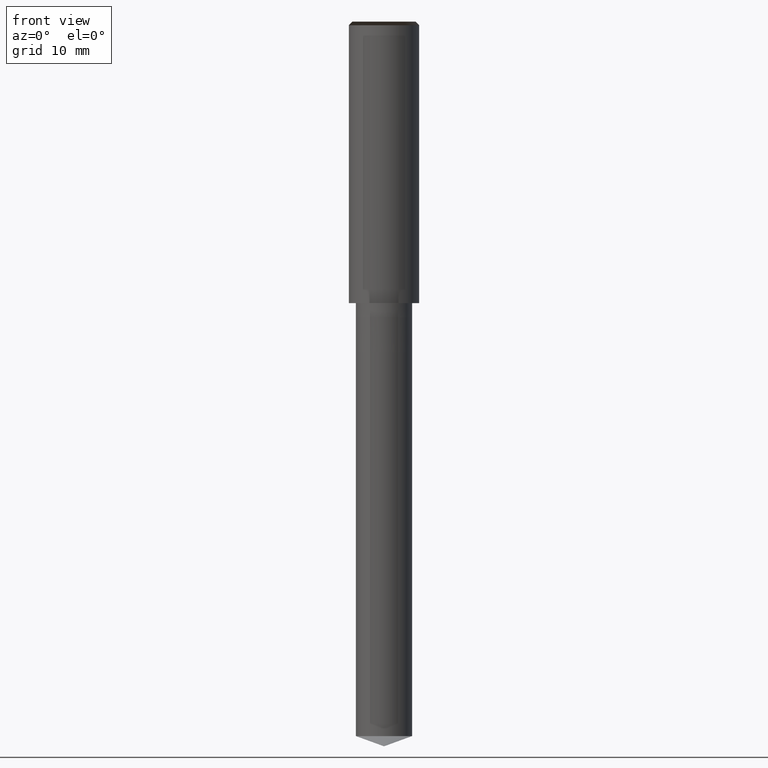
[diagram: clean part render]
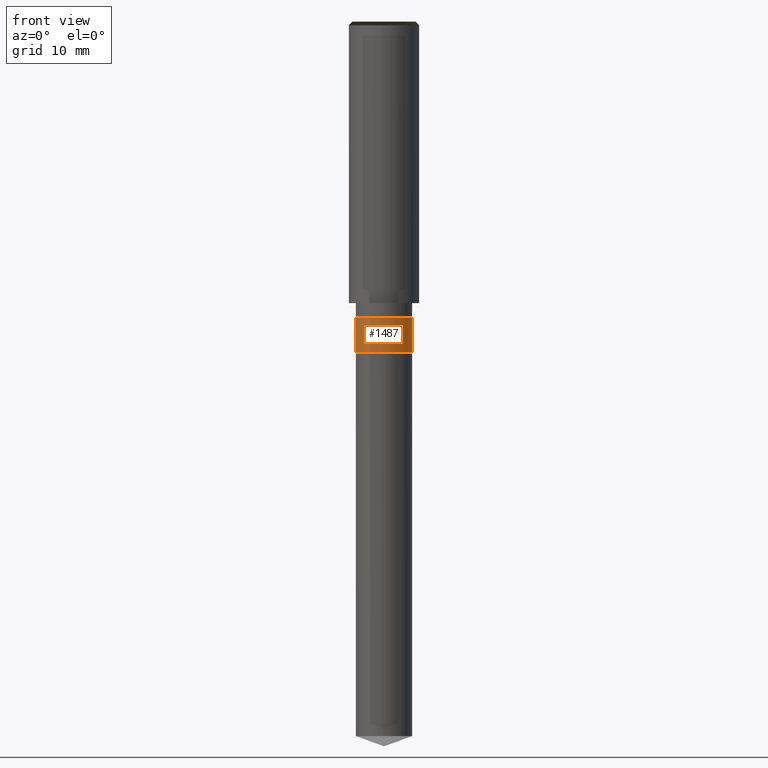
[diagram: same view with one face highlighted and labeled with its STEP entity id]
A machine part, front view. The second image highlights one B-rep face of the part: STEP entity #1487.
In plain terms, the highlighted face is a freeform B-spline surface patch.
Its self-contained STEP definition (entity closure, byte-faithful):
#1154=CARTESIAN_POINT('',(4.0,0.0,-7.0));
#1158=CARTESIAN_POINT('',(-4.0,0.0,-7.0));
#1163=CARTESIAN_POINT('',(-4.0,-4.0,-7.0));
#1164=CARTESIAN_POINT('',(0.0,-4.0,-7.0));
#1165=CARTESIAN_POINT('',(4.0,-4.0,-7.0));
#1166=CARTESIAN_POINT('',(4.0,0.0,-2.0));
#1170=CARTESIAN_POINT('',(-4.0,0.0,-2.0));
#1192=CARTESIAN_POINT('',(-4.0,-4.0,-2.0));
#1193=CARTESIAN_POINT('',(0.0,-4.0,-2.0));
#1194=CARTESIAN_POINT('',(4.0,-4.0,-2.0));
#1468=(
BOUNDED_SURFACE()
B_SPLINE_SURFACE(1,2,(
(#1158,#1163,#1164,#1165,#1154),
(#1170,#1192,#1193,#1194,#1166)
), .UNSPECIFIED.,.F.,.F.,.F.)
B_SPLINE_SURFACE_WITH_KNOTS((2,2),(3,2,3),(
0.0,1.0),(
0.0,0.5,1.0), .UNSPECIFIED.)
GEOMETRIC_REPRESENTATION_ITEM()
RATIONAL_B_SPLINE_SURFACE(((1.0,0.707106781187,1.0,0.707106781187,1.0),
(1.0,0.707106781187,1.0,0.707106781187,1.0)
))
REPRESENTATION_ITEM('')
SURFACE()
);
#1469=(
BOUNDED_CURVE()
B_SPLINE_CURVE(2,(#1154,#1165,#1164,#1163,#1158),.UNSPECIFIED.,.F.,.F.)
B_SPLINE_CURVE_WITH_KNOTS((3,2,3),
(0.0,0.5,1.0),.UNSPECIFIED.)
CURVE()
GEOMETRIC_REPRESENTATION_ITEM()
RATIONAL_B_SPLINE_CURVE((1.0,0.707106781187,1.0,0.707106781187,1.0))
REPRESENTATION_ITEM('')
);
#1470=(
BOUNDED_CURVE()
B_SPLINE_CURVE(1,(#1158,#1170),.UNSPECIFIED.,.F.,.F.)
B_SPLINE_CURVE_WITH_KNOTS((2,2),
(0.0,1.0),.UNSPECIFIED.)
CURVE()
GEOMETRIC_REPRESENTATION_ITEM()
RATIONAL_B_SPLINE_CURVE((1.0,1.0))
REPRESENTATION_ITEM('')
);
#1471=(
BOUNDED_CURVE()
B_SPLINE_CURVE(2,(#1170,#1192,#1193,#1194,#1166),.UNSPECIFIED.,.F.,.F.)
B_SPLINE_CURVE_WITH_KNOTS((3,2,3),
(0.0,0.5,1.0),.UNSPECIFIED.)
CURVE()
GEOMETRIC_REPRESENTATION_ITEM()
RATIONAL_B_SPLINE_CURVE((1.0,0.707106781187,1.0,0.707106781187,1.0))
REPRESENTATION_ITEM('')
);
#1472=(
BOUNDED_CURVE()
B_SPLINE_CURVE(1,(#1166,#1154),.UNSPECIFIED.,.F.,.F.)
B_SPLINE_CURVE_WITH_KNOTS((2,2),
(0.0,1.0),.UNSPECIFIED.)
CURVE()
GEOMETRIC_REPRESENTATION_ITEM()
RATIONAL_B_SPLINE_CURVE((1.0,1.0))
REPRESENTATION_ITEM('')
);
#1473=VERTEX_POINT('',#1154);
#1474=VERTEX_POINT('',#1158);
#1475=VERTEX_POINT('',#1166);
#1476=VERTEX_POINT('',#1170);
#1477=EDGE_CURVE('',#1473,#1474,#1469,.T.);
#1478=EDGE_CURVE('',#1474,#1476,#1470,.T.);
#1479=EDGE_CURVE('',#1476,#1475,#1471,.T.);
#1480=EDGE_CURVE('',#1475,#1473,#1472,.T.);
#1481=ORIENTED_EDGE('',*,*,#1477,.T.);
#1482=ORIENTED_EDGE('',*,*,#1478,.T.);
#1483=ORIENTED_EDGE('',*,*,#1479,.T.);
#1484=ORIENTED_EDGE('',*,*,#1480,.T.);
#1485=EDGE_LOOP('',(#1481,#1482,#1483,#1484));
#1486=FACE_OUTER_BOUND('',#1485,.T.);
#1487=ADVANCED_FACE('',(#1486),#1468,.T.);